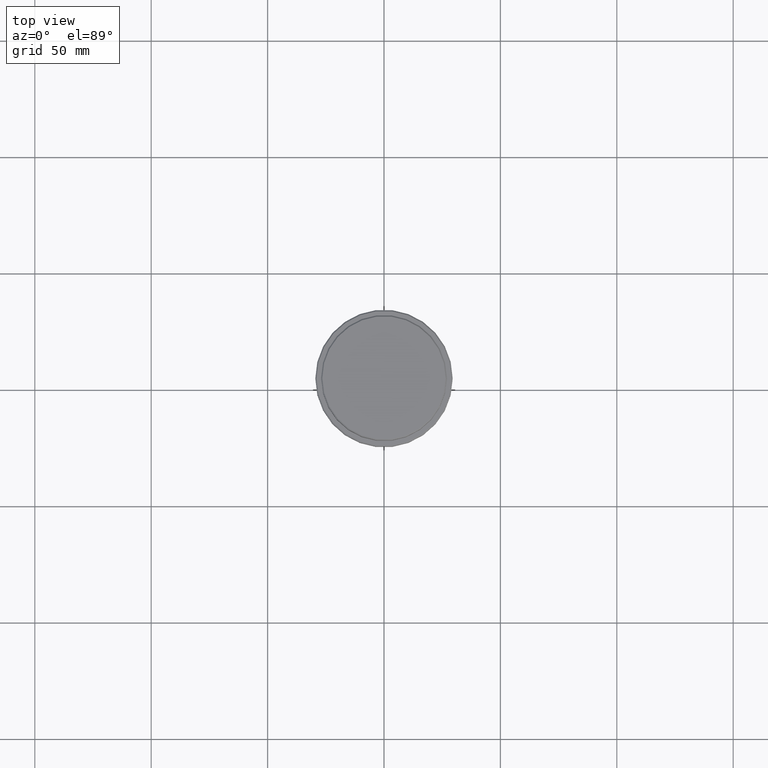
[diagram: clean part render]
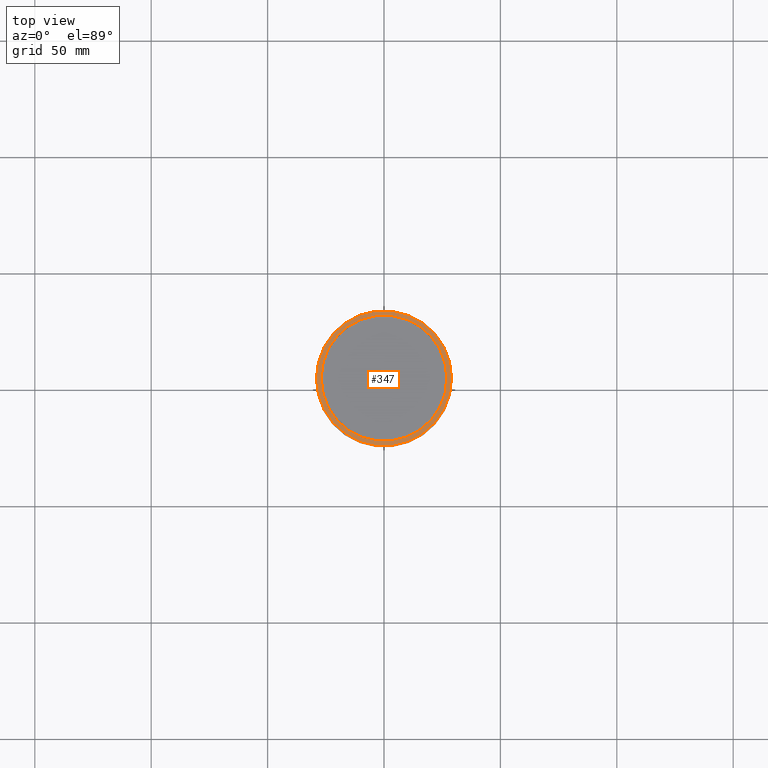
[diagram: same view with one face highlighted and labeled with its STEP entity id]
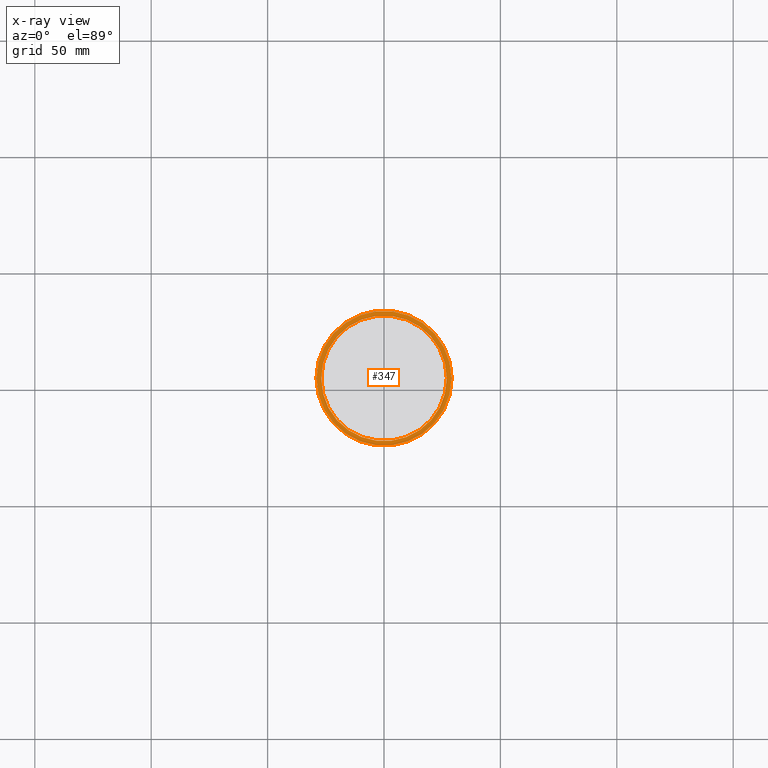
[diagram: x-ray of the same camera — body ghosted, the highlighted face saturated]
A machine part, top view. The second image highlights one B-rep face of the part: STEP entity #347.
The next image is the same camera in x-ray: the body ghosted, the highlighted face saturated — about 0% of this face is hidden behind the body in this view.
In plain terms, the highlighted planar face has unit normal (0, -0, 1).
Its self-contained STEP definition (entity closure, byte-faithful):
#25 = AXIS2_PLACEMENT_3D ( 'NONE', #1033, #799, #463 ) ;
#101 = EDGE_LOOP ( 'NONE', ( #896, #855 ) ) ;
#111 = CARTESIAN_POINT ( 'NONE',  ( 26.99999999999999645, 0.000000000000000000, -12.00000000000000355 ) ) ;
#142 = CARTESIAN_POINT ( 'NONE',  ( 0.000000000000000000, 0.000000000000000000, -12.00000000000000355 ) ) ;
#182 = VERTEX_POINT ( 'NONE', #671 ) ;
#208 = CIRCLE ( 'NONE', #384, 28.99999999999999645 ) ;
#219 = CARTESIAN_POINT ( 'NONE',  ( 0.000000000000000000, 0.000000000000000000, -12.00000000000000355 ) ) ;
#246 = DIRECTION ( 'NONE',  ( -0.000000000000000000, -0.000000000000000000, 1.000000000000000000 ) ) ;
#328 = DIRECTION ( 'NONE',  ( 1.000000000000000000, 0.000000000000000000, 0.000000000000000000 ) ) ;
#347 = ADVANCED_FACE ( 'NONE', ( #1143, #936 ), #597, .T. ) ;
#376 = EDGE_CURVE ( 'NONE', #879, #1207, #877, .T. ) ;
#378 = DIRECTION ( 'NONE',  ( 1.000000000000000000, 0.000000000000000000, 0.000000000000000000 ) ) ;
#384 = AXIS2_PLACEMENT_3D ( 'NONE', #719, #492, #630 ) ;
#409 = ORIENTED_EDGE ( 'NONE', *, *, #1231, .T. ) ;
#434 = CIRCLE ( 'NONE', #1372, 26.99999999999999645 ) ;
#439 = DIRECTION ( 'NONE',  ( 0.000000000000000000, 0.000000000000000000, -1.000000000000000000 ) ) ;
#463 = DIRECTION ( 'NONE',  ( 1.000000000000000000, 0.000000000000000000, 0.000000000000000000 ) ) ;
#492 = DIRECTION ( 'NONE',  ( -0.000000000000000000, -0.000000000000000000, 1.000000000000000000 ) ) ;
#526 = CARTESIAN_POINT ( 'NONE',  ( 0.000000000000000000, 0.000000000000000000, -12.00000000000000355 ) ) ;
#597 = PLANE ( 'NONE',  #25 ) ;
#630 = DIRECTION ( 'NONE',  ( 1.000000000000000000, 0.000000000000000000, 0.000000000000000000 ) ) ;
#671 = CARTESIAN_POINT ( 'NONE',  ( -26.99999999999999645, 3.306546357697853339E-15, -12.00000000000000355 ) ) ;
#711 = CIRCLE ( 'NONE', #948, 26.99999999999999645 ) ;
#719 = CARTESIAN_POINT ( 'NONE',  ( 0.000000000000000000, 0.000000000000000000, -12.00000000000000355 ) ) ;
#720 = CARTESIAN_POINT ( 'NONE',  ( -28.99999999999999645, 0.000000000000000000, -12.00000000000000355 ) ) ;
#794 = CARTESIAN_POINT ( 'NONE',  ( 28.99999999999999645, 3.582091887506007817E-15, -12.00000000000000355 ) ) ;
#799 = DIRECTION ( 'NONE',  ( 0.000000000000000000, -0.000000000000000000, 1.000000000000000000 ) ) ;
#855 = ORIENTED_EDGE ( 'NONE', *, *, #1062, .T. ) ;
#877 = CIRCLE ( 'NONE', #967, 28.99999999999999645 ) ;
#879 = VERTEX_POINT ( 'NONE', #720 ) ;
#894 = DIRECTION ( 'NONE',  ( 1.000000000000000000, 0.000000000000000000, 0.000000000000000000 ) ) ;
#896 = ORIENTED_EDGE ( 'NONE', *, *, #1012, .T. ) ;
#936 = FACE_BOUND ( 'NONE', #101, .T. ) ;
#948 = AXIS2_PLACEMENT_3D ( 'NONE', #526, #1000, #328 ) ;
#967 = AXIS2_PLACEMENT_3D ( 'NONE', #142, #246, #378 ) ;
#1000 = DIRECTION ( 'NONE',  ( 0.000000000000000000, 0.000000000000000000, -1.000000000000000000 ) ) ;
#1011 = ORIENTED_EDGE ( 'NONE', *, *, #376, .T. ) ;
#1012 = EDGE_CURVE ( 'NONE', #1053, #182, #434, .T. ) ;
#1033 = CARTESIAN_POINT ( 'NONE',  ( 0.000000000000000000, 26.49999999999999645, -12.00000000000000355 ) ) ;
#1053 = VERTEX_POINT ( 'NONE', #111 ) ;
#1062 = EDGE_CURVE ( 'NONE', #182, #1053, #711, .T. ) ;
#1143 = FACE_OUTER_BOUND ( 'NONE', #1162, .T. ) ;
#1162 = EDGE_LOOP ( 'NONE', ( #1011, #409 ) ) ;
#1207 = VERTEX_POINT ( 'NONE', #794 ) ;
#1231 = EDGE_CURVE ( 'NONE', #1207, #879, #208, .T. ) ;
#1372 = AXIS2_PLACEMENT_3D ( 'NONE', #219, #439, #894 ) ;